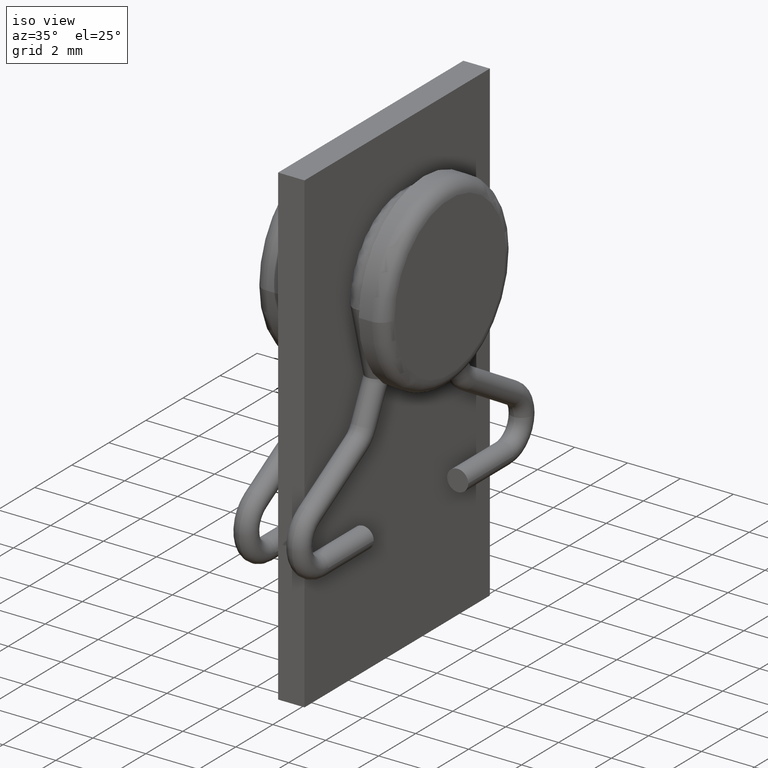
[diagram: clean part render]
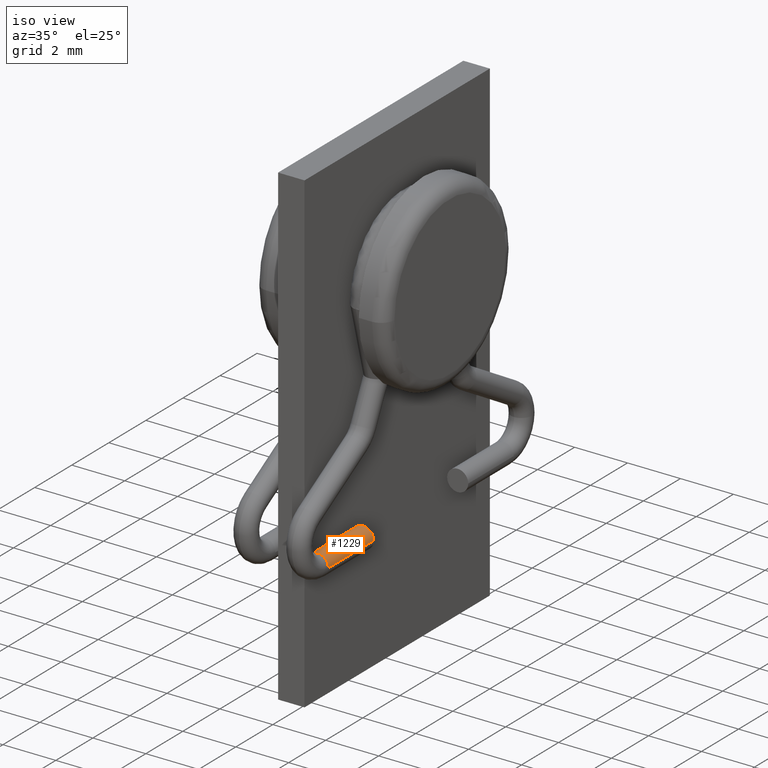
[diagram: same view with one face highlighted and labeled with its STEP entity id]
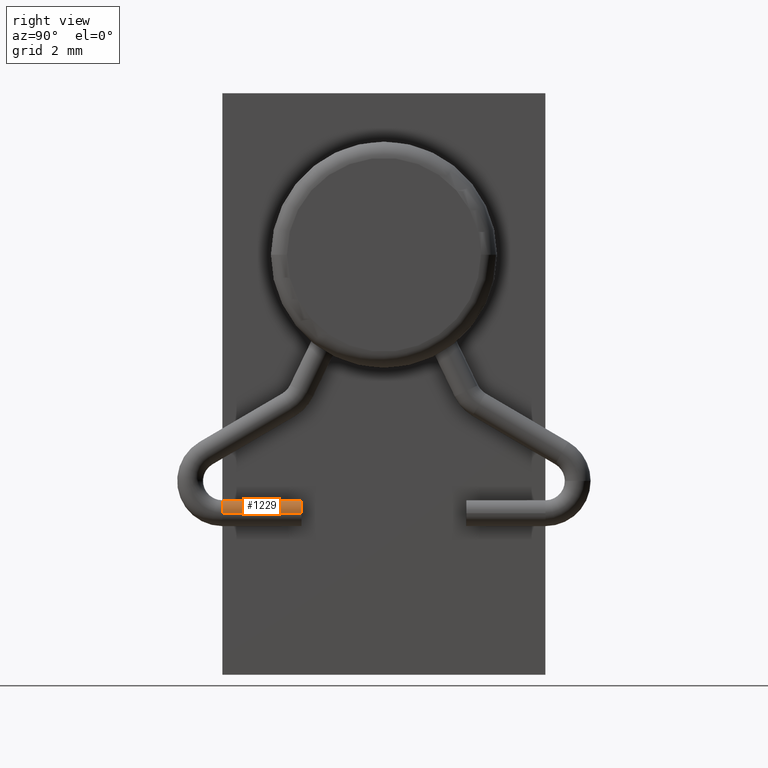
[diagram: same view with one face highlighted and labeled with its STEP entity id]
A machine part, iso view. The second image highlights one B-rep face of the part: STEP entity #1229.
A second angle (right view) of the same face is appended — the face is thin or edge-on in the first view.
In plain terms, the highlighted cylindrical surface (edge-blend (fillet) strip) has radius 0.4 mm, axis along (-0, 1, 0).
Its self-contained STEP definition (entity closure, byte-faithful):
#63 = VERTEX_POINT ( 'NONE', #2859 ) ;
#123 = CIRCLE ( 'NONE', #3054, 0.3999999999999999667 ) ;
#124 = EDGE_CURVE ( 'NONE', #2266, #820, #2976, .T. ) ;
#215 = LINE ( 'NONE', #2391, #1405 ) ;
#250 = CARTESIAN_POINT ( 'NONE',  ( 1.000000000000002665, -4.999999999999995559, 5.000000000000000000 ) ) ;
#444 = CARTESIAN_POINT ( 'NONE',  ( 1.000000000000001554, -2.549999999999999822, 5.000000000000000000 ) ) ;
#504 = DIRECTION ( 'NONE',  ( -4.425314989736759785E-16, 1.000000000000000000, 0.000000000000000000 ) ) ;
#564 = CARTESIAN_POINT ( 'NONE',  ( 1.400000000000002798, -4.999999999999995559, 5.000000000000000000 ) ) ;
#762 = ORIENTED_EDGE ( 'NONE', *, *, #1135, .T. ) ;
#820 = VERTEX_POINT ( 'NONE', #1081 ) ;
#846 = DIRECTION ( 'NONE',  ( -4.425314989736759785E-16, 1.000000000000000000, 0.000000000000000000 ) ) ;
#992 = DIRECTION ( 'NONE',  ( -4.425314989736759785E-16, 1.000000000000000000, 0.000000000000000000 ) ) ;
#1040 = AXIS2_PLACEMENT_3D ( 'NONE', #250, #992, #1956 ) ;
#1081 = CARTESIAN_POINT ( 'NONE',  ( 1.400000000000001465, -2.549999999999999822, 5.000000000000000000 ) ) ;
#1096 = VERTEX_POINT ( 'NONE', #1463 ) ;
#1101 = CARTESIAN_POINT ( 'NONE',  ( 1.000000000000002887, -4.999999999999995559, 5.000000000000000888 ) ) ;
#1135 = EDGE_CURVE ( 'NONE', #820, #63, #123, .T. ) ;
#1147 = DIRECTION ( 'NONE',  ( 1.000000000000000000, 0.000000000000000000, 0.000000000000000000 ) ) ;
#1151 = CIRCLE ( 'NONE', #3123, 0.3999999999999999667 ) ;
#1229 = ADVANCED_FACE ( 'NONE', ( #2371 ), #2429, .T. ) ;
#1238 = VECTOR ( 'NONE', #846, 1000.000000000000000 ) ;
#1393 = EDGE_CURVE ( 'NONE', #1096, #1635, #2903, .T. ) ;
#1394 = ORIENTED_EDGE ( 'NONE', *, *, #1393, .F. ) ;
#1405 = VECTOR ( 'NONE', #504, 1000.000000000000000 ) ;
#1409 = ORIENTED_EDGE ( 'NONE', *, *, #124, .T. ) ;
#1423 = DIRECTION ( 'NONE',  ( 5.310377987684109770E-16, -1.000000000000000000, 0.000000000000000000 ) ) ;
#1431 = CARTESIAN_POINT ( 'NONE',  ( 1.000000000000002887, -4.999999999999995559, 5.000000000000000888 ) ) ;
#1460 = CARTESIAN_POINT ( 'NONE',  ( 0.6000000000000028644, -4.999999999999995559, 5.000000000000000000 ) ) ;
#1463 = CARTESIAN_POINT ( 'NONE',  ( 1.000000000000002665, -4.999999999999995559, 5.400000000000001243 ) ) ;
#1635 = VERTEX_POINT ( 'NONE', #1460 ) ;
#1648 = ORIENTED_EDGE ( 'NONE', *, *, #2913, .F. ) ;
#1792 = DIRECTION ( 'NONE',  ( 5.310377987684109770E-16, -1.000000000000000000, 0.000000000000000000 ) ) ;
#1956 = DIRECTION ( 'NONE',  ( -1.000000000000000000, 0.000000000000000000, 0.000000000000000000 ) ) ;
#2157 = AXIS2_PLACEMENT_3D ( 'NONE', #1101, #1792, #1147 ) ;
#2181 = EDGE_CURVE ( 'NONE', #1635, #63, #215, .T. ) ;
#2191 = DIRECTION ( 'NONE',  ( 1.000000000000000000, 0.000000000000000000, 0.000000000000000000 ) ) ;
#2266 = VERTEX_POINT ( 'NONE', #564 ) ;
#2320 = CARTESIAN_POINT ( 'NONE',  ( 1.400000000000002576, -4.999999999999995559, 5.000000000000000000 ) ) ;
#2366 = DIRECTION ( 'NONE',  ( 5.310377987684109770E-16, -1.000000000000000000, 0.000000000000000000 ) ) ;
#2371 = FACE_OUTER_BOUND ( 'NONE', #3101, .T. ) ;
#2391 = CARTESIAN_POINT ( 'NONE',  ( 0.6000000000000026423, -4.999999999999995559, 5.000000000000000000 ) ) ;
#2429 = CYLINDRICAL_SURFACE ( 'NONE', #1040, 0.3999999999999999667 ) ;
#2600 = DIRECTION ( 'NONE',  ( 1.000000000000000000, 0.000000000000000000, 0.000000000000000000 ) ) ;
#2859 = CARTESIAN_POINT ( 'NONE',  ( 0.6000000000000015321, -2.549999999999999822, 5.000000000000000000 ) ) ;
#2903 = CIRCLE ( 'NONE', #2157, 0.3999999999999999667 ) ;
#2913 = EDGE_CURVE ( 'NONE', #2266, #1096, #1151, .T. ) ;
#2930 = ORIENTED_EDGE ( 'NONE', *, *, #2181, .F. ) ;
#2976 = LINE ( 'NONE', #2320, #1238 ) ;
#3054 = AXIS2_PLACEMENT_3D ( 'NONE', #444, #1423, #2191 ) ;
#3101 = EDGE_LOOP ( 'NONE', ( #1648, #1409, #762, #2930, #1394 ) ) ;
#3123 = AXIS2_PLACEMENT_3D ( 'NONE', #1431, #2366, #2600 ) ;